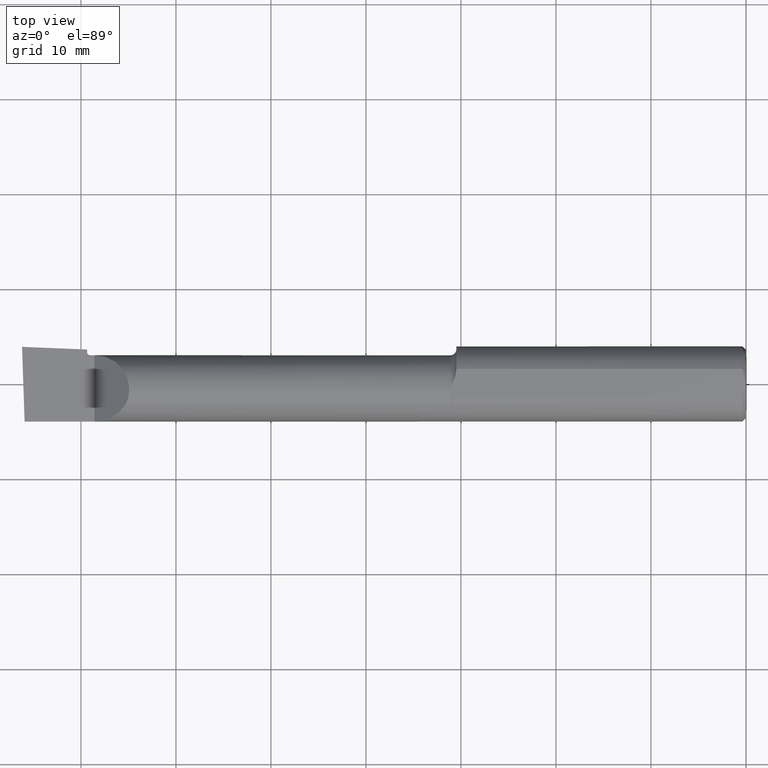
[diagram: clean part render]
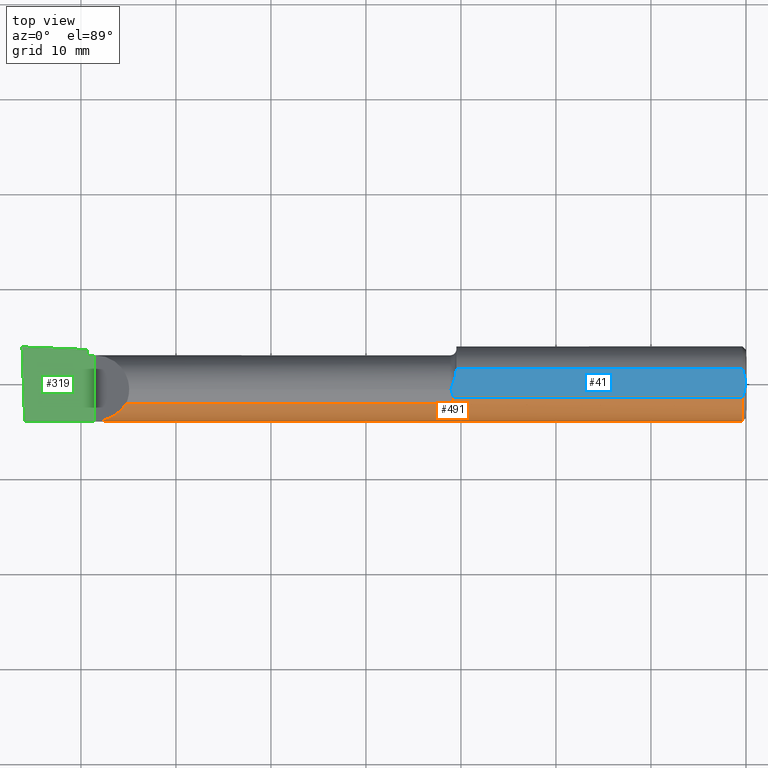
[diagram: same view with three faces highlighted in distinct colors, each labeled with its STEP entity id]
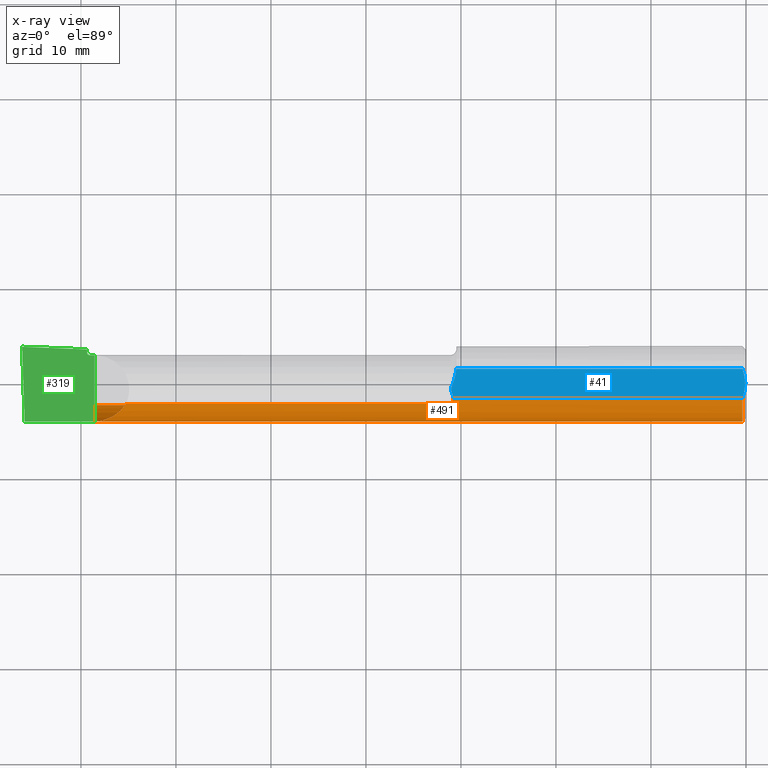
[diagram: x-ray of the same camera — body ghosted, the three highlighted faces saturated]
A machine part, top view with three faces highlighted in distinct colors.
The next image is the same camera in x-ray (body ghosted, the three faces saturated) — at least one of them is partly hidden behind the body in this view.
Their STEP definitions:

[orange] entity #491 — the highlighted cylindrical surface (partial cylindrical patch) has radius 3.9649 mm, axis along (1, -0, -0).
#3 = CARTESIAN_POINT ( 'NONE',  ( -1.219508261956889772, -0.08224208440130563458, 0.1326837206089791499 ) ) ;
#13 = VERTEX_POINT ( 'NONE', #128 ) ;
#16 = FACE_OUTER_BOUND ( 'NONE', #146, .T. ) ;
#19 = DIRECTION ( 'NONE',  ( 1.000000000000000000, -0.000000000000000000, -0.000000000000000000 ) ) ;
#24 = CARTESIAN_POINT ( 'NONE',  ( -1.206230440715366115, -0.03646003586407876862, -0.1522257056384942464 ) ) ;
#31 = ORIENTED_EDGE ( 'NONE', *, *, #279, .T. ) ;
#46 = CARTESIAN_POINT ( 'NONE',  ( -2.556000000000000494, -0.1560999999999999888, 3.826894855694925850E-18 ) ) ;
#58 = CARTESIAN_POINT ( 'NONE',  ( -1.225000000000000311, -0.08570000000000035922, 0.1304711462354797291 ) ) ;
#77 = VECTOR ( 'NONE', #611, 39.37007874015748143 ) ;
#82 = ORIENTED_EDGE ( 'NONE', *, *, #646, .T. ) ;
#87 = CARTESIAN_POINT ( 'NONE',  ( -1.207963511987623750, -0.04781653154435709652, -0.1490354188630816368 ) ) ;
#89 = EDGE_CURVE ( 'NONE', #192, #13, #379, .T. ) ;
#91 = B_SPLINE_CURVE_WITH_KNOTS ( 'NONE', 3,
 ( #409, #633, #480, #340 ),
 .UNSPECIFIED., .F., .F.,
 ( 4, 4 ),
 ( 0.001819519886996684996, 0.002475127250578773152 ),
 .UNSPECIFIED. ) ;
#93 = CARTESIAN_POINT ( 'NONE',  ( -1.222162220462625681, -0.08489276752862959241, -0.1310023188550711870 ) ) ;
#95 = EDGE_CURVE ( 'NONE', #663, #540, #728, .T. ) ;
#96 = VERTEX_POINT ( 'NONE', #264 ) ;
#110 = CARTESIAN_POINT ( 'NONE',  ( -1.210843495424060556, -0.06001999666777315529, 0.1440999999999999504 ) ) ;
#128 = CARTESIAN_POINT ( 'NONE',  ( -1.210843495424060556, -0.06001999666777315529, 0.1440999999999999504 ) ) ;
#133 = ORIENTED_EDGE ( 'NONE', *, *, #726, .T. ) ;
#136 = CARTESIAN_POINT ( 'NONE',  ( -1.225000000000000311, -0.08570000000000035922, 0.1304711462354797291 ) ) ;
#146 = EDGE_LOOP ( 'NONE', ( #133, #419, #318, #370, #598, #162, #455, #82, #514, #31, #687 ) ) ;
#148 = CARTESIAN_POINT ( 'NONE',  ( -1.213126895908789304, -0.06887538526317520116, -0.1401954838979539986 ) ) ;
#151 = B_SPLINE_CURVE_WITH_KNOTS ( 'NONE', 3,
 ( #110, #391, #506, #398, #456, #3, #287, #574, #448, #58 ),
 .UNSPECIFIED., .F., .F.,
 ( 4, 2, 2, 2, 4 ),
 ( 5.292347910189429887E-07, 0.0004247077115782497449, 0.0006367969499718673576, 0.0007428415691686792539, 0.0008488861883654910418 ),
 .UNSPECIFIED. ) ;
#162 = ORIENTED_EDGE ( 'NONE', *, *, #308, .T. ) ;
#166 = CARTESIAN_POINT ( 'NONE',  ( -2.982667168175673122, -0.1560999999999999888, -0.05371247775559849502 ) ) ;
#192 = VERTEX_POINT ( 'NONE', #489 ) ;
#198 =( BOUNDED_CURVE ( )  B_SPLINE_CURVE ( 3, ( #683, #166, #294, #225 ),
 .UNSPECIFIED., .F., .T. ) 
 B_SPLINE_CURVE_WITH_KNOTS ( ( 4, 4 ),
 ( 4.987330662103024892, 5.976951217326471166 ),
 .UNSPECIFIED. ) 
 CURVE ( )  GEOMETRIC_REPRESENTATION_ITEM ( )  RATIONAL_B_SPLINE_CURVE ( ( 1.000000000000000000, 0.9200392120919970163, 0.9200392120919970163, 1.000000000000000000 ) ) 
 REPRESENTATION_ITEM ( '' )  );
#204 = CARTESIAN_POINT ( 'NONE',  ( -1.220128093538974889, -0.08306175160951355385, -0.1321708551218276906 ) ) ;
#212 = CARTESIAN_POINT ( 'NONE',  ( -3.000000000000000444, -0.06001999666777744352, 0.1440999999999999226 ) ) ;
#224 = VERTEX_POINT ( 'NONE', #688 ) ;
#225 = CARTESIAN_POINT ( 'NONE',  ( -2.975676552398976771, -0.08569999999999965146, -0.1304711462354801732 ) ) ;
#234 = DIRECTION ( 'NONE',  ( -1.000000000000000000, 0.000000000000000000, 0.000000000000000000 ) ) ;
#237 = DIRECTION ( 'NONE',  ( -1.000000000000000000, 0.000000000000000000, 0.000000000000000000 ) ) ;
#241 = CARTESIAN_POINT ( 'NONE',  ( -0.01500000000000298143, 0.000000000000000000, 0.000000000000000000 ) ) ;
#244 = VERTEX_POINT ( 'NONE', #404 ) ;
#251 = CARTESIAN_POINT ( 'NONE',  ( -1.204862523376330152, -0.02500000000022615382, -0.1540850739039595629 ) ) ;
#252 = CIRCLE ( 'NONE', #690, 0.1560999999999999888 ) ;
#264 = CARTESIAN_POINT ( 'NONE',  ( -1.225000000000000311, -0.08570000000000031759, -0.1304711462354797846 ) ) ;
#279 = EDGE_CURVE ( 'NONE', #540, #224, #198, .T. ) ;
#287 = CARTESIAN_POINT ( 'NONE',  ( -1.220308733175471838, -0.08325729668116199633, 0.1320471792325032534 ) ) ;
#294 = CARTESIAN_POINT ( 'NONE',  ( -2.977743596163800799, -0.1305938407426049386, -0.1009826174484539929 ) ) ;
#308 = EDGE_CURVE ( 'NONE', #13, #530, #151, .T. ) ;
#312 = CYLINDRICAL_SURFACE ( 'NONE', #341, 0.1560999999999999888 ) ;
#318 = ORIENTED_EDGE ( 'NONE', *, *, #645, .T. ) ;
#340 = CARTESIAN_POINT ( 'NONE',  ( -1.202458313762935660, 4.839520141882076981E-13, -0.1560999999999999888 ) ) ;
#341 = AXIS2_PLACEMENT_3D ( 'NONE', #430, #19, #686 ) ;
#342 = VECTOR ( 'NONE', #539, 39.37007874015748143 ) ;
#362 = CARTESIAN_POINT ( 'NONE',  ( -3.000000000000000444, 0.000000000000000000, -0.1560999999999999888 ) ) ;
#370 = ORIENTED_EDGE ( 'NONE', *, *, #407, .T. ) ;
#379 = LINE ( 'NONE', #212, #555 ) ;
#381 = CARTESIAN_POINT ( 'NONE',  ( -1.217151728812752465, -0.07866717671370222764, -0.1348531152278534540 ) ) ;
#385 = DIRECTION ( 'NONE',  ( -1.000000000000000000, 0.000000000000000000, 0.000000000000000000 ) ) ;
#391 = CARTESIAN_POINT ( 'NONE',  ( -1.212083001804619808, -0.06507129184707190206, 0.1419960532975072243 ) ) ;
#398 = CARTESIAN_POINT ( 'NONE',  ( -1.216324726609743223, -0.07684337455390567728, 0.1359013108991521390 ) ) ;
#404 = CARTESIAN_POINT ( 'NONE',  ( -2.569528853764521337, -0.08570000000000285723, 0.1304711462354783413 ) ) ;
#407 = EDGE_CURVE ( 'NONE', #578, #192, #252, .T. ) ;
#409 = CARTESIAN_POINT ( 'NONE',  ( -1.204862523376330152, -0.02500000000022615382, -0.1540850739039595629 ) ) ;
#413 = EDGE_CURVE ( 'NONE', #626, #512, #91, .T. ) ;
#419 = ORIENTED_EDGE ( 'NONE', *, *, #413, .T. ) ;
#426 = CARTESIAN_POINT ( 'NONE',  ( -1.223482932671293044, -0.08570000000000020657, -0.1304711462354798124 ) ) ;
#430 = CARTESIAN_POINT ( 'NONE',  ( -3.000000000000000444, 0.000000000000000000, 0.000000000000000000 ) ) ;
#432 = CARTESIAN_POINT ( 'NONE',  ( -2.989266190342419360, -0.1560999999999999888, 3.826894855694925850E-18 ) ) ;
#435 = CARTESIAN_POINT ( 'NONE',  ( -1.225000000000000311, -0.08570000000000031759, -0.1304711462354797846 ) ) ;
#440 = EDGE_CURVE ( 'NONE', #224, #96, #572, .T. ) ;
#448 = CARTESIAN_POINT ( 'NONE',  ( -1.223558490372087082, -0.08570000000287529562, 0.1304711462335915728 ) ) ;
#451 = VECTOR ( 'NONE', #689, 39.37007874015748143 ) ;
#455 = ORIENTED_EDGE ( 'NONE', *, *, #695, .T. ) ;
#456 = CARTESIAN_POINT ( 'NONE',  ( -1.217376702052392679, -0.07908290169520046375, 0.1346075232099593344 ) ) ;
#460 = CARTESIAN_POINT ( 'NONE',  ( -1.202458313762935660, 4.839520141882076981E-13, -0.1560999999999999888 ) ) ;
#467 = CARTESIAN_POINT ( 'NONE',  ( -1.204862523376330152, -0.02500000000022615382, -0.1540850739039595629 ) ) ;
#472 = LINE ( 'NONE', #362, #451 ) ;
#480 = CARTESIAN_POINT ( 'NONE',  ( -1.203095797791018828, -0.008405471570478694962, -0.1561000000000260235 ) ) ;
#481 = CARTESIAN_POINT ( 'NONE',  ( -1.216062054560814731, -0.07627963852233908548, -0.1362221433799745696 ) ) ;
#489 = CARTESIAN_POINT ( 'NONE',  ( -0.01500000000000298143, -0.06001999666777732556, 0.1440999999999999781 ) ) ;
#491 = ADVANCED_FACE ( 'NONE', ( #16 ), #312, .T. ) ;
#506 = CARTESIAN_POINT ( 'NONE',  ( -1.213486186723762961, -0.06993940022577724291, 0.1396536156489260050 ) ) ;
#512 = VERTEX_POINT ( 'NONE', #460 ) ;
#514 = ORIENTED_EDGE ( 'NONE', *, *, #95, .T. ) ;
#522 = CARTESIAN_POINT ( 'NONE',  ( -2.599017382551547684, -0.1305938407426061321, 0.1009826174484517586 ) ) ;
#524 =( BOUNDED_CURVE ( )  B_SPLINE_CURVE ( 3, ( #575, #522, #742, #704 ),
 .UNSPECIFIED., .F., .F. ) 
 B_SPLINE_CURVE_WITH_KNOTS ( ( 4, 4 ),
 ( 0.5811757715714742645, 1.570796326794896558 ),
 .UNSPECIFIED. ) 
 CURVE ( )  GEOMETRIC_REPRESENTATION_ITEM ( )  RATIONAL_B_SPLINE_CURVE ( ( 1.000000000000000000, 0.9200392120920009020, 0.9200392120920009020, 1.000000000000000000 ) ) 
 REPRESENTATION_ITEM ( '' )  );
#530 = VERTEX_POINT ( 'NONE', #136 ) ;
#539 = DIRECTION ( 'NONE',  ( 1.000000000000000000, -0.000000000000000000, -0.000000000000000000 ) ) ;
#540 = VERTEX_POINT ( 'NONE', #432 ) ;
#548 = CARTESIAN_POINT ( 'NONE',  ( -1.219310887745682415, -0.08198244806377678884, -0.1328448627315355901 ) ) ;
#555 = VECTOR ( 'NONE', #385, 39.37007874015748143 ) ;
#572 = LINE ( 'NONE', #601, #342 ) ;
#574 = CARTESIAN_POINT ( 'NONE',  ( -1.222282960142827557, -0.08496306084894052202, 0.1309561502377612208 ) ) ;
#575 = CARTESIAN_POINT ( 'NONE',  ( -2.569528853764521337, -0.08570000000000285723, 0.1304711462354783413 ) ) ;
#578 = VERTEX_POINT ( 'NONE', #593 ) ;
#593 = CARTESIAN_POINT ( 'NONE',  ( -0.01500000000000298143, 0.000000000000000000, -0.1560999999999999888 ) ) ;
#598 = ORIENTED_EDGE ( 'NONE', *, *, #89, .T. ) ;
#601 = CARTESIAN_POINT ( 'NONE',  ( -1.972499999999999698, -0.08569999999999965146, -0.1304711462354801732 ) ) ;
#611 = DIRECTION ( 'NONE',  ( -1.000000000000000000, -0.000000000000000000, -0.000000000000000000 ) ) ;
#622 = CARTESIAN_POINT ( 'NONE',  ( -2.699999999999998401, -0.1560999999999999888, 3.826894855694925850E-18 ) ) ;
#626 = VERTEX_POINT ( 'NONE', #467 ) ;
#630 = B_SPLINE_CURVE_WITH_KNOTS ( 'NONE', 3,
 ( #435, #426, #93, #204, #548, #381, #481, #148, #723, #87, #24, #251 ),
 .UNSPECIFIED., .F., .F.,
 ( 4, 2, 2, 2, 2, 4 ),
 ( 1.966861314596262729E-07, 0.0001139043861855358603, 0.0002276120862396120790, 0.0004550274863477645707, 0.0009098582865640706925, 0.001819519886996684996 ),
 .UNSPECIFIED. ) ;
#633 = CARTESIAN_POINT ( 'NONE',  ( -1.203876643924216561, -0.01674057265308578554, -0.1554251497364122214 ) ) ;
#645 = EDGE_CURVE ( 'NONE', #512, #578, #472, .T. ) ;
#646 = EDGE_CURVE ( 'NONE', #244, #663, #524, .T. ) ;
#663 = VERTEX_POINT ( 'NONE', #622 ) ;
#664 = VECTOR ( 'NONE', #234, 39.37007874015748143 ) ;
#683 = CARTESIAN_POINT ( 'NONE',  ( -2.989266190342419360, -0.1560999999999999888, 3.826894855694925850E-18 ) ) ;
#684 = LINE ( 'NONE', #748, #664 ) ;
#686 = DIRECTION ( 'NONE',  ( 0.000000000000000000, 0.000000000000000000, -1.000000000000000000 ) ) ;
#687 = ORIENTED_EDGE ( 'NONE', *, *, #440, .T. ) ;
#688 = CARTESIAN_POINT ( 'NONE',  ( -2.975676552398976771, -0.08569999999999965146, -0.1304711462354801732 ) ) ;
#689 = DIRECTION ( 'NONE',  ( 1.000000000000000000, -0.000000000000000000, -0.000000000000000000 ) ) ;
#690 = AXIS2_PLACEMENT_3D ( 'NONE', #241, #237, #698 ) ;
#695 = EDGE_CURVE ( 'NONE', #530, #244, #684, .T. ) ;
#698 = DIRECTION ( 'NONE',  ( 0.000000000000000000, 0.000000000000000000, 1.000000000000000000 ) ) ;
#704 = CARTESIAN_POINT ( 'NONE',  ( -2.699999999999998401, -0.1560999999999999888, 3.826894855694925850E-18 ) ) ;
#723 = CARTESIAN_POINT ( 'NONE',  ( -1.211707069840809892, -0.06372296352525484708, -0.1426158673174757752 ) ) ;
#726 = EDGE_CURVE ( 'NONE', #96, #626, #630, .T. ) ;
#728 = LINE ( 'NONE', #46, #77 ) ;
#742 = CARTESIAN_POINT ( 'NONE',  ( -2.646287522244402002, -0.1561000000000000165, 0.05371247775559721827 ) ) ;
#748 = CARTESIAN_POINT ( 'NONE',  ( -1.972499999999999698, -0.08569999999999965146, 0.1304711462354801732 ) ) ;

[blue] entity #41 — the highlighted planar face has unit normal (0, 0, 1).
#6 = CARTESIAN_POINT ( 'NONE',  ( -0.008307085287358404943, 0.04068523568973327759, 0.1441000000000000059 ) ) ;
#10 = EDGE_CURVE ( 'NONE', #23, #349, #276, .T. ) ;
#11 = CARTESIAN_POINT ( 'NONE',  ( 3.000000000000000444, 0.06250000000000000000, 0.1440999999999999504 ) ) ;
#13 = VERTEX_POINT ( 'NONE', #128 ) ;
#23 = VERTEX_POINT ( 'NONE', #580 ) ;
#26 = VERTEX_POINT ( 'NONE', #119 ) ;
#30 = EDGE_CURVE ( 'NONE', #71, #13, #411, .T. ) ;
#41 = ADVANCED_FACE ( 'NONE', ( #131 ), #525, .T. ) ;
#60 = CARTESIAN_POINT ( 'NONE',  ( -1.221844053232373994, -0.02804753169359755147, 0.1440999999999999781 ) ) ;
#71 = VERTEX_POINT ( 'NONE', #724 ) ;
#74 = CARTESIAN_POINT ( 'NONE',  ( -1.213353959584577479, 0.002866311517142755127, 0.1440999999999999781 ) ) ;
#84 = CARTESIAN_POINT ( 'NONE',  ( -1.204082834115641321, 0.03088512097716966318, 0.1440999999999999504 ) ) ;
#89 = EDGE_CURVE ( 'NONE', #192, #13, #379, .T. ) ;
#100 = ORIENTED_EDGE ( 'NONE', *, *, #89, .F. ) ;
#106 = CARTESIAN_POINT ( 'NONE',  ( -0.003000000000002389644, 6.421147883366632753E-21, 0.1440999999999999504 ) ) ;
#117 = CARTESIAN_POINT ( 'NONE',  ( -1.221844053232375771, -0.02500000000003144845, 0.1440999999999999504 ) ) ;
#119 = CARTESIAN_POINT ( 'NONE',  ( -1.200050504025077514, 0.06001999666777743658, 0.1440999999999999504 ) ) ;
#128 = CARTESIAN_POINT ( 'NONE',  ( -1.210843495424060556, -0.06001999666777315529, 0.1440999999999999504 ) ) ;
#131 = FACE_OUTER_BOUND ( 'NONE', #343, .T. ) ;
#135 = CARTESIAN_POINT ( 'NONE',  ( -1.220724021719191921, -0.01776615298046435934, 0.1440999999999999504 ) ) ;
#140 = CARTESIAN_POINT ( 'NONE',  ( -1.200532541532474795, 0.04511886254870696444, 0.1440999999999999781 ) ) ;
#145 = LINE ( 'NONE', #603, #322 ) ;
#163 = CARTESIAN_POINT ( 'NONE',  ( -0.01133355301893235190, -0.05048430180739589546, 0.1440999999999999781 ) ) ;
#171 = CARTESIAN_POINT ( 'NONE',  ( -1.221844053232385763, -0.02136326841098919530, 0.1441000000000000059 ) ) ;
#192 = VERTEX_POINT ( 'NONE', #489 ) ;
#194 = CARTESIAN_POINT ( 'NONE',  ( -1.217139718007824944, -0.007416860360654541767, 0.1440999999999999781 ) ) ;
#207 = EDGE_CURVE ( 'NONE', #26, #23, #145, .T. ) ;
#212 = CARTESIAN_POINT ( 'NONE',  ( -3.000000000000000444, -0.06001999666777744352, 0.1440999999999999226 ) ) ;
#223 = EDGE_CURVE ( 'NONE', #349, #192, #711, .T. ) ;
#235 = CARTESIAN_POINT ( 'NONE',  ( -1.214985600317322278, -0.04846509284843834864, 0.1440999999999999504 ) ) ;
#243 = DIRECTION ( 'NONE',  ( 0.000000000000000000, 0.000000000000000000, 1.000000000000000000 ) ) ;
#276 = B_SPLINE_CURVE_WITH_KNOTS ( 'NONE', 3,
 ( #691, #585, #6, #423, #577, #635 ),
 .UNSPECIFIED., .F., .F.,
 ( 4, 2, 4 ),
 ( 0.003862504283746402787, 0.004641553971935397267, 0.005420603660124392181 ),
 .UNSPECIFIED. ) ;
#278 = CARTESIAN_POINT ( 'NONE',  ( -0.003000000000002389644, -0.01021764673483461540, 0.1440999999999999781 ) ) ;
#290 = CARTESIAN_POINT ( 'NONE',  ( -1.219201185154609623, -0.03693468910894930762, 0.1440999999999998948 ) ) ;
#322 = VECTOR ( 'NONE', #549, 39.37007874015748143 ) ;
#338 = ORIENTED_EDGE ( 'NONE', *, *, #10, .F. ) ;
#343 = EDGE_LOOP ( 'NONE', ( #490, #587, #605, #100, #535, #338 ) ) ;
#349 = VERTEX_POINT ( 'NONE', #420 ) ;
#379 = LINE ( 'NONE', #212, #555 ) ;
#385 = DIRECTION ( 'NONE',  ( -1.000000000000000000, 0.000000000000000000, 0.000000000000000000 ) ) ;
#411 = B_SPLINE_CURVE_WITH_KNOTS ( 'NONE', 3,
 ( #743, #60, #459, #290, #518, #235, #464, #641 ),
 .UNSPECIFIED., .F., .F.,
 ( 4, 2, 2, 4 ),
 ( 0.0006785821176393210842, 0.0009116715494801301990, 0.001144760981320939314, 0.001610939845002553423 ),
 .UNSPECIFIED. ) ;
#420 = CARTESIAN_POINT ( 'NONE',  ( -0.003000000000002389644, 6.421147883366632753E-21, 0.1440999999999999504 ) ) ;
#423 = CARTESIAN_POINT ( 'NONE',  ( -0.004112937275919921129, 0.02048434576366625973, 0.1440999999999999226 ) ) ;
#459 = CARTESIAN_POINT ( 'NONE',  ( -1.221036826405245801, -0.03107590170041917010, 0.1440999999999999504 ) ) ;
#464 = CARTESIAN_POINT ( 'NONE',  ( -1.212837095251397823, -0.05422015848554273543, 0.1440999999999998948 ) ) ;
#473 = DIRECTION ( 'NONE',  ( 1.000000000000000000, 0.000000000000000000, -0.000000000000000000 ) ) ;
#489 = CARTESIAN_POINT ( 'NONE',  ( -0.01500000000000298143, -0.06001999666777732556, 0.1440999999999999781 ) ) ;
#490 = ORIENTED_EDGE ( 'NONE', *, *, #207, .F. ) ;
#518 = CARTESIAN_POINT ( 'NONE',  ( -1.218148277183320971, -0.03981762987256249470, 0.1440999999999999781 ) ) ;
#525 = PLANE ( 'NONE',  #745 ) ;
#535 = ORIENTED_EDGE ( 'NONE', *, *, #223, .F. ) ;
#549 = DIRECTION ( 'NONE',  ( 1.000000000000000000, -0.000000000000000000, -0.000000000000000000 ) ) ;
#555 = VECTOR ( 'NONE', #385, 39.37007874015748143 ) ;
#561 = EDGE_CURVE ( 'NONE', #26, #71, #655, .T. ) ;
#577 = CARTESIAN_POINT ( 'NONE',  ( -0.003000000000002389644, 0.01020794464685663080, 0.1440999999999999781 ) ) ;
#579 = CARTESIAN_POINT ( 'NONE',  ( -0.01500000000000298143, -0.06001999666777732556, 0.1440999999999999781 ) ) ;
#580 = CARTESIAN_POINT ( 'NONE',  ( -0.01500000000000249051, 0.06001999666777751291, 0.1440999999999999504 ) ) ;
#585 = CARTESIAN_POINT ( 'NONE',  ( -0.01132650618350060368, 0.05046597439866602058, 0.1440999999999999781 ) ) ;
#587 = ORIENTED_EDGE ( 'NONE', *, *, #561, .T. ) ;
#603 = CARTESIAN_POINT ( 'NONE',  ( -3.000000000000000444, 0.06001999666777744352, 0.1440999999999999226 ) ) ;
#605 = ORIENTED_EDGE ( 'NONE', *, *, #30, .T. ) ;
#614 = CARTESIAN_POINT ( 'NONE',  ( -0.008316884378890531879, -0.04071872938164922129, 0.1440999999999999226 ) ) ;
#628 = CARTESIAN_POINT ( 'NONE',  ( -1.218418672230972888, -0.01083899323587144553, 0.1440999999999999781 ) ) ;
#635 = CARTESIAN_POINT ( 'NONE',  ( -0.003000000000002389644, 6.421147883366632753E-21, 0.1440999999999999504 ) ) ;
#641 = CARTESIAN_POINT ( 'NONE',  ( -1.210843495424060556, -0.06001999666777315529, 0.1440999999999999504 ) ) ;
#651 = CARTESIAN_POINT ( 'NONE',  ( -1.200050504025077514, 0.06001999666777743658, 0.1440999999999999504 ) ) ;
#655 = B_SPLINE_CURVE_WITH_KNOTS ( 'NONE', 3,
 ( #651, #140, #84, #699, #74, #194, #628, #135, #171, #117 ),
 .UNSPECIFIED., .F., .F.,
 ( 4, 2, 2, 2, 4 ),
 ( 0.01301670781631118073, 0.01412932456334887142, 0.01468563293686771763, 0.01496378712362713900, 0.01524194131038656037 ),
 .UNSPECIFIED. ) ;
#691 = CARTESIAN_POINT ( 'NONE',  ( -0.01500000000000249051, 0.06001999666777751291, 0.1440999999999999504 ) ) ;
#699 = CARTESIAN_POINT ( 'NONE',  ( -1.210816084744953169, 0.009840729273010847752, 0.1440999999999999504 ) ) ;
#711 = B_SPLINE_CURVE_WITH_KNOTS ( 'NONE', 3,
 ( #106, #278, #747, #614, #163, #579 ),
 .UNSPECIFIED., .F., .F.,
 ( 4, 2, 4 ),
 ( 0.005420603660124392181, 0.006200393792043786684, 0.006980183923963180319 ),
 .UNSPECIFIED. ) ;
#724 = CARTESIAN_POINT ( 'NONE',  ( -1.221844053232375771, -0.02500000000003144845, 0.1440999999999999504 ) ) ;
#743 = CARTESIAN_POINT ( 'NONE',  ( -1.221844053232375771, -0.02500000000003144845, 0.1440999999999999504 ) ) ;
#745 = AXIS2_PLACEMENT_3D ( 'NONE', #11, #243, #473 ) ;
#747 = CARTESIAN_POINT ( 'NONE',  ( -0.004121137220903748830, -0.02053748477038531278, 0.1441000000000000059 ) ) ;

[green] entity #319 — the highlighted planar face has unit normal (0, 0, 1).
#7 = VERTEX_POINT ( 'NONE', #591 ) ;
#8 = DIRECTION ( 'NONE',  ( -0.000000000000000000, -0.000000000000000000, -1.000000000000000000 ) ) ;
#46 = CARTESIAN_POINT ( 'NONE',  ( -2.556000000000000494, -0.1560999999999999888, 3.826894855694925850E-18 ) ) ;
#48 = DIRECTION ( 'NONE',  ( 0.000000000000000000, 0.000000000000000000, 1.000000000000000000 ) ) ;
#50 = DIRECTION ( 'NONE',  ( 0.000000000000000000, 1.000000000000000000, 0.000000000000000000 ) ) ;
#72 = ORIENTED_EDGE ( 'NONE', *, *, #143, .T. ) ;
#77 = VECTOR ( 'NONE', #611, 39.37007874015748143 ) ;
#79 = LINE ( 'NONE', #182, #547 ) ;
#85 = CIRCLE ( 'NONE', #445, 0.01000000000000016674 ) ;
#95 = EDGE_CURVE ( 'NONE', #663, #540, #728, .T. ) ;
#99 = DIRECTION ( 'NONE',  ( 0.000000000000000000, 1.000000000000000000, 0.000000000000000000 ) ) ;
#104 = CARTESIAN_POINT ( 'NONE',  ( -2.719999999999999307, 0.1189000000000001306, 3.826894855694928162E-18 ) ) ;
#112 = EDGE_CURVE ( 'NONE', #7, #129, #153, .T. ) ;
#114 = VECTOR ( 'NONE', #50, 39.37007874015748143 ) ;
#129 = VERTEX_POINT ( 'NONE', #104 ) ;
#143 = EDGE_CURVE ( 'NONE', #302, #474, #543, .T. ) ;
#153 = LINE ( 'NONE', #722, #329 ) ;
#160 = PLANE ( 'NONE',  #216 ) ;
#175 = ORIENTED_EDGE ( 'NONE', *, *, #112, .T. ) ;
#182 = CARTESIAN_POINT ( 'NONE',  ( -2.999553225608605267, 0.1407279727905360600, 3.826894855694925850E-18 ) ) ;
#216 = AXIS2_PLACEMENT_3D ( 'NONE', #563, #48, #734 ) ;
#228 = LINE ( 'NONE', #566, #114 ) ;
#295 = CARTESIAN_POINT ( 'NONE',  ( -3.000000000000000444, 0.1536194554637218546, 0.000000000000000000 ) ) ;
#302 = VERTEX_POINT ( 'NONE', #503 ) ;
#303 = CARTESIAN_POINT ( 'NONE',  ( -3.000000000000000444, 0.1536194554637218546, 0.000000000000000000 ) ) ;
#307 = EDGE_CURVE ( 'NONE', #663, #7, #228, .T. ) ;
#319 = ADVANCED_FACE ( 'NONE', ( #515 ), #160, .T. ) ;
#321 = DIRECTION ( 'NONE',  ( -1.000000000000000000, 0.000000000000000000, 0.000000000000000000 ) ) ;
#329 = VECTOR ( 'NONE', #321, 39.37007874015748143 ) ;
#345 = DIRECTION ( 'NONE',  ( 0.03463576215158577914, -0.9994000019912840926, 0.000000000000000000 ) ) ;
#359 = B_SPLINE_CURVE_WITH_KNOTS ( 'NONE', 3,
 ( #475, #361, #583, #303 ),
 .UNSPECIFIED., .F., .F.,
 ( 4, 4 ),
 ( 0.01176971488481072178, 0.01863345644698700954 ),
 .UNSPECIFIED. ) ;
#361 = CARTESIAN_POINT ( 'NONE',  ( -2.819999845125628735, 0.1462561883915259597, 3.826894855694925850E-18 ) ) ;
#363 = EDGE_CURVE ( 'NONE', #474, #700, #359, .T. ) ;
#376 = CARTESIAN_POINT ( 'NONE',  ( -2.729999999999999538, 0.1425688816766004785, 0.000000000000000000 ) ) ;
#386 = EDGE_CURVE ( 'NONE', #129, #302, #85, .T. ) ;
#408 = ORIENTED_EDGE ( 'NONE', *, *, #386, .T. ) ;
#432 = CARTESIAN_POINT ( 'NONE',  ( -2.989266190342419360, -0.1560999999999999888, 3.826894855694925850E-18 ) ) ;
#445 = AXIS2_PLACEMENT_3D ( 'NONE', #643, #8, #639 ) ;
#449 = ORIENTED_EDGE ( 'NONE', *, *, #363, .T. ) ;
#474 = VERTEX_POINT ( 'NONE', #376 ) ;
#475 = CARTESIAN_POINT ( 'NONE',  ( -2.729999999999999538, 0.1425688816766004785, 0.000000000000000000 ) ) ;
#503 = CARTESIAN_POINT ( 'NONE',  ( -2.729999999999999538, 0.1289000000000001256, 0.000000000000000000 ) ) ;
#515 = FACE_OUTER_BOUND ( 'NONE', #573, .T. ) ;
#516 = VECTOR ( 'NONE', #99, 39.37007874015748143 ) ;
#540 = VERTEX_POINT ( 'NONE', #432 ) ;
#543 = LINE ( 'NONE', #608, #516 ) ;
#547 = VECTOR ( 'NONE', #345, 39.37007874015748854 ) ;
#563 = CARTESIAN_POINT ( 'NONE',  ( -2.556000000000000494, 0.1560999999999999888, 3.826894855694925850E-18 ) ) ;
#566 = CARTESIAN_POINT ( 'NONE',  ( -2.699999999999998401, 0.1560999999999999888, 3.826894855694925850E-18 ) ) ;
#573 = EDGE_LOOP ( 'NONE', ( #449, #682, #740, #678, #175, #408, #72 ) ) ;
#583 = CARTESIAN_POINT ( 'NONE',  ( -2.909999853432402528, 0.1499395137171538328, 3.826894855694925850E-18 ) ) ;
#591 = CARTESIAN_POINT ( 'NONE',  ( -2.699999999999998401, 0.1189000000000000057, 3.826894855694925850E-18 ) ) ;
#608 = CARTESIAN_POINT ( 'NONE',  ( -2.729999999999999538, 0.1560999999999999888, 3.826894855694925850E-18 ) ) ;
#611 = DIRECTION ( 'NONE',  ( -1.000000000000000000, -0.000000000000000000, -0.000000000000000000 ) ) ;
#622 = CARTESIAN_POINT ( 'NONE',  ( -2.699999999999998401, -0.1560999999999999888, 3.826894855694925850E-18 ) ) ;
#631 = EDGE_CURVE ( 'NONE', #700, #540, #79, .T. ) ;
#639 = DIRECTION ( 'NONE',  ( 1.000000000000000000, 0.000000000000000000, 0.000000000000000000 ) ) ;
#643 = CARTESIAN_POINT ( 'NONE',  ( -2.719999999999999307, 0.1289000000000001256, 0.000000000000000000 ) ) ;
#663 = VERTEX_POINT ( 'NONE', #622 ) ;
#678 = ORIENTED_EDGE ( 'NONE', *, *, #307, .T. ) ;
#682 = ORIENTED_EDGE ( 'NONE', *, *, #631, .T. ) ;
#700 = VERTEX_POINT ( 'NONE', #295 ) ;
#722 = CARTESIAN_POINT ( 'NONE',  ( 0.000000000000000000, 0.1189000000000000334, 3.826894855694925850E-18 ) ) ;
#728 = LINE ( 'NONE', #46, #77 ) ;
#734 = DIRECTION ( 'NONE',  ( 1.000000000000000000, 0.000000000000000000, -0.000000000000000000 ) ) ;
#740 = ORIENTED_EDGE ( 'NONE', *, *, #95, .F. ) ;